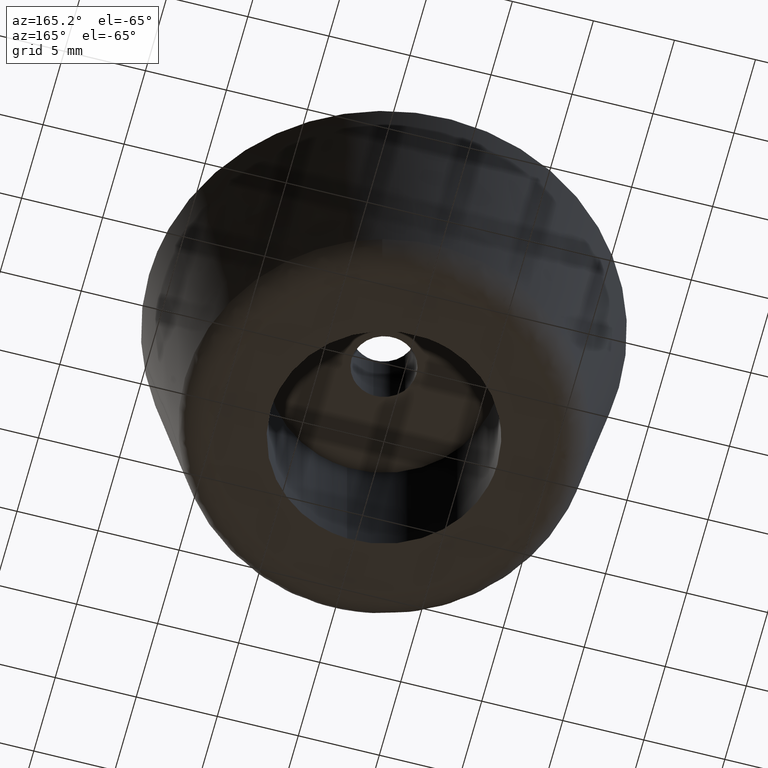
[diagram: clean part render]
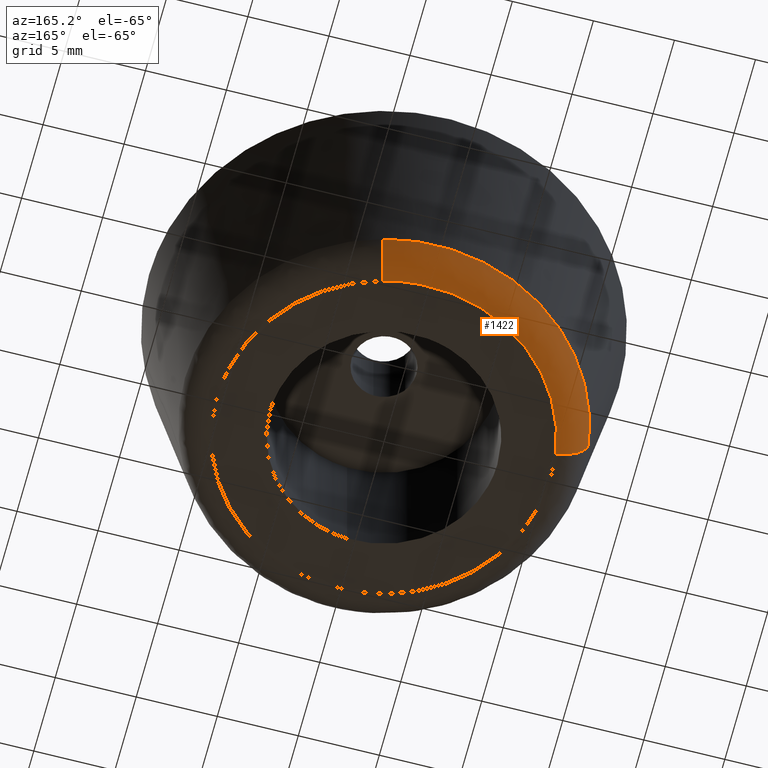
[diagram: same view with one face highlighted and labeled with its STEP entity id]
A machine part, auxiliary view. The second image highlights one B-rep face of the part: STEP entity #1422.
In plain terms, the highlighted face is a freeform B-spline surface patch.
Its self-contained STEP definition (entity closure, byte-faithful):
#661=CARTESIAN_POINT('',(3.233848140018775,11.845025133430161,1.671201740429098));
#662=VERTEX_POINT('',#661);
#676=CARTESIAN_POINT('',(-12.139195232409350,1.844542662016452,1.671202795503410));
#677=VERTEX_POINT('',#676);
#678=CARTESIAN_POINT('',(-12.139195232409350,1.844542662016453,1.671202795503410));
#679=CARTESIAN_POINT('',(-10.553757115940636,12.278534000000002,1.671201999999795));
#680=CARTESIAN_POINT('',(0.0,12.278534000000001,1.671201999999795));
#681=CARTESIAN_POINT('',(1.645980774167666,12.278533999999999,1.671201999999795));
#682=CARTESIAN_POINT('',(3.233848140018775,11.845025133430159,1.671201740429098));
#690=(BOUNDED_CURVE()B_SPLINE_CURVE(2,(#678,#679,#680,#681,#682),.UNSPECIFIED.,.F.,.U.)B_SPLINE_CURVE_WITH_KNOTS((3,2,3),(0.025897483413830,0.250000000000000,0.294901824454066),.UNSPECIFIED.)CURVE()GEOMETRIC_REPRESENTATION_ITEM()RATIONAL_B_SPLINE_CURVE((0.945604422450913,0.737447570291526,1.0,0.947394240420207,0.913685237495812))REPRESENTATION_ITEM(''));
#691=EDGE_CURVE('',#677,#662,#690,.T.);
#1296=CARTESIAN_POINT('',(2.714273151637967,9.941887239292655,3.884845E-016));
#1297=VERTEX_POINT('',#1296);
#1313=CARTESIAN_POINT('',(3.233848140018776,11.845025133430170,1.671201740429097));
#1314=CARTESIAN_POINT('',(3.160493097917649,11.576324237172038,-6.018392E-009));
#1315=CARTESIAN_POINT('',(2.714273151637966,9.941887239292655,3.884845E-016));
#1323=(BOUNDED_CURVE()B_SPLINE_CURVE(2,(#1313,#1314,#1315),.UNSPECIFIED.,.F.,.U.)B_SPLINE_CURVE_WITH_KNOTS((3,3),(-1.709167884138020,-0.288869904641041),.UNSPECIFIED.)CURVE()GEOMETRIC_REPRESENTATION_ITEM()RATIONAL_B_SPLINE_CURVE((0.856788095457165,0.653960547163547,0.857349303176916))REPRESENTATION_ITEM(''));
#1324=EDGE_CURVE('',#662,#1297,#1323,.T.);
#1331=CARTESIAN_POINT('',(-10.188793764239991,1.548186764315484,3.407575E-016));
#1332=VERTEX_POINT('',#1331);
#1333=CARTESIAN_POINT('',(-12.139195232409357,1.844542662016453,1.671202795503409));
#1334=CARTESIAN_POINT('',(-11.863822381373485,1.802703529208831,-5.450832E-009));
#1335=CARTESIAN_POINT('',(-10.188793764239994,1.548186764315484,3.407575E-016));
#1343=(BOUNDED_CURVE()B_SPLINE_CURVE(2,(#1333,#1334,#1335),.UNSPECIFIED.,.F.,.U.)B_SPLINE_CURVE_WITH_KNOTS((3,3),(-1.709168471526655,-0.288869905009204),.UNSPECIFIED.)CURVE()GEOMETRIC_REPRESENTATION_ITEM()RATIONAL_B_SPLINE_CURVE((0.895392092052646,0.683425593358756,0.895978410359429))REPRESENTATION_ITEM(''));
#1344=EDGE_CURVE('',#677,#1332,#1343,.T.);
#1379=CARTESIAN_POINT('',(-12.155954518912637,1.847096754391386,1.797684946175958));
#1380=CARTESIAN_POINT('',(-10.308857764521248,14.003051273304017,1.797684946175957));
#1381=CARTESIAN_POINT('',(1.847096754391385,12.155954518912637,1.797684946175958));
#1382=CARTESIAN_POINT('',(2.551239810739380,12.048960012476797,1.797684946175959));
#1383=CARTESIAN_POINT('',(3.238319286902965,11.861377866084021,1.797684946175958));
#1384=CARTESIAN_POINT('',(-11.963309802336719,1.817824398182387,-0.118697045780826));
#1385=CARTESIAN_POINT('',(-10.145485404154332,13.781134200519102,-0.118697045780826));
#1386=CARTESIAN_POINT('',(1.817824398182385,11.963309802336719,-0.118697045780826));
#1387=CARTESIAN_POINT('',(2.510808360498890,11.858010919748059,-0.118697045780826));
#1388=CARTESIAN_POINT('',(3.186999162248241,11.673401531222250,-0.118697045780826));
#1389=CARTESIAN_POINT('',(-10.062778062125521,1.529038683864335,0.004065784157589));
#1390=CARTESIAN_POINT('',(-8.533739378261183,11.591816745989851,0.004065784157589));
#1391=CARTESIAN_POINT('',(1.529038683864334,10.062778062125521,0.004065784157589));
#1392=CARTESIAN_POINT('',(2.111932876911252,9.974207315134368,0.004065784157589));
#1393=CARTESIAN_POINT('',(2.680701727511894,9.818925596645638,0.004065784157589));
#1401=(BOUNDED_SURFACE()B_SPLINE_SURFACE(2,2,((#1379,#1384,#1389),(#1380,#1385,#1390),(#1381,#1386,#1391),(#1382,#1387,#1392),(#1383,#1388,#1393)),.UNSPECIFIED.,.F.,.F.,.U.)B_SPLINE_SURFACE_WITH_KNOTS((3,2,3),(3,3),(0.0,20.371829624025668,22.001574439700470),(0.0,3.226046289711600),.UNSPECIFIED.)GEOMETRIC_REPRESENTATION_ITEM()RATIONAL_B_SPLINE_SURFACE(((0.917626711868002,0.661161653496487,0.918271670436894),(0.648860070559778,0.467511888647877,0.649316125137426),(0.917626711868002,0.661161653496487,0.918271670436894),(0.896125401068611,0.645669687082903,0.896755247332616),(0.878064296716284,0.632656432931605,0.878681448641877)))REPRESENTATION_ITEM('')SURFACE());
#1402=CARTESIAN_POINT('',(-10.188793764239994,1.548186764315484,3.407575E-016));
#1403=CARTESIAN_POINT('',(-8.858083022999502,10.305745999999997,0.0));
#1404=CARTESIAN_POINT('',(0.0,10.305745999999999,0.0));
#1405=CARTESIAN_POINT('',(1.381524909340874,10.305745999999999,0.0));
#1406=CARTESIAN_POINT('',(2.714273151637967,9.941887239292655,3.884845E-016));
#1414=(BOUNDED_CURVE()B_SPLINE_CURVE(2,(#1402,#1403,#1404,#1405,#1406),.UNSPECIFIED.,.F.,.U.)B_SPLINE_CURVE_WITH_KNOTS((3,2,3),(0.025897584625340,0.250000000000000,0.294901926751006),.UNSPECIFIED.)CURVE()GEOMETRIC_REPRESENTATION_ITEM()RATIONAL_B_SPLINE_CURVE((0.945604234431081,0.737447688868186,1.0,0.947394120571888,0.913685083901802))REPRESENTATION_ITEM(''));
#1415=EDGE_CURVE('',#1332,#1297,#1414,.T.);
#1416=ORIENTED_EDGE('',*,*,#1415,.F.);
#1417=ORIENTED_EDGE('',*,*,#1344,.F.);
#1418=ORIENTED_EDGE('',*,*,#691,.T.);
#1419=ORIENTED_EDGE('',*,*,#1324,.T.);
#1420=EDGE_LOOP('',(#1416,#1417,#1418,#1419));
#1421=FACE_OUTER_BOUND('',#1420,.T.);
#1422=ADVANCED_FACE('',(#1421),#1401,.T.);